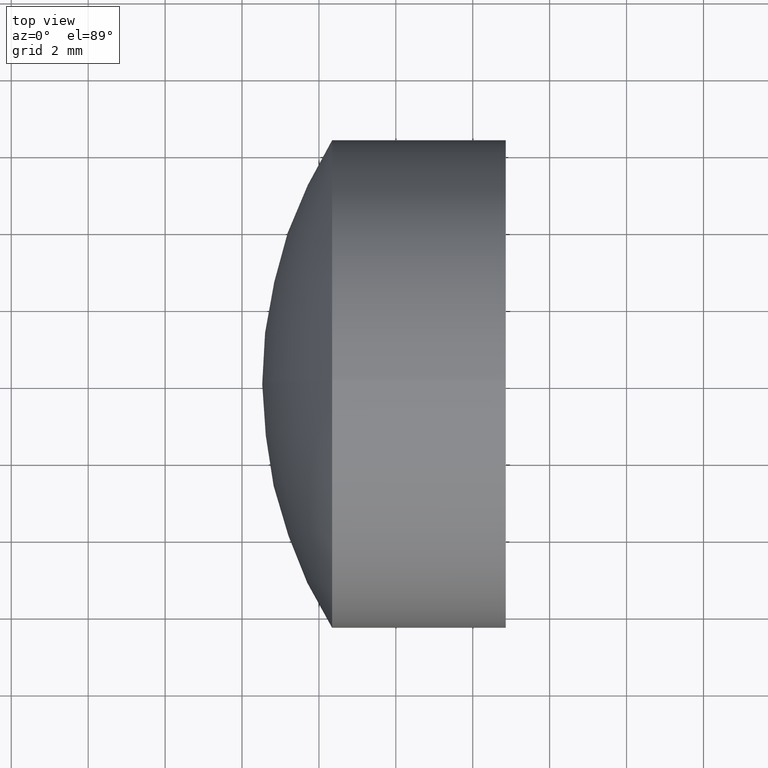
[diagram: clean part render]
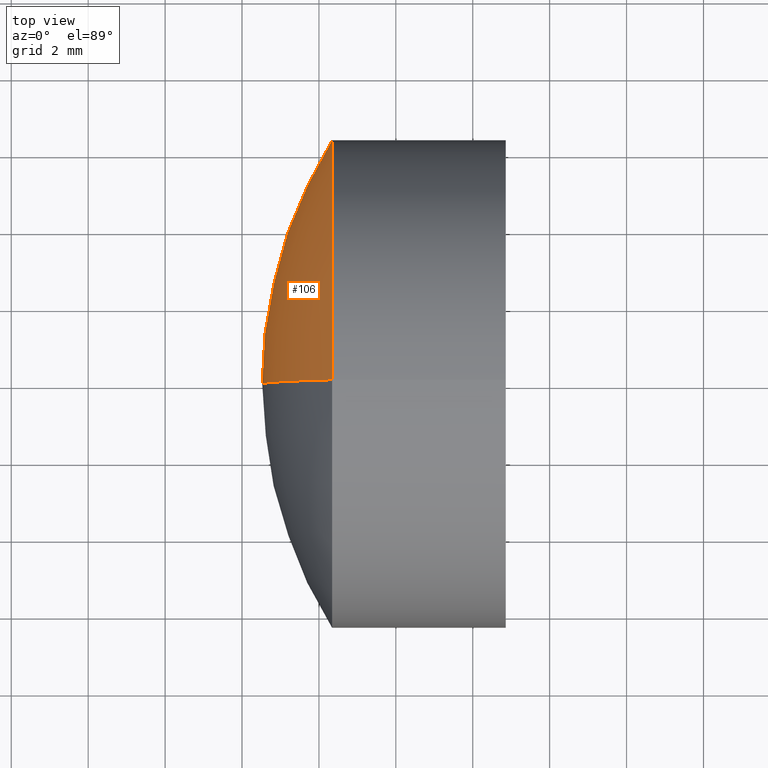
[diagram: same view with one face highlighted and labeled with its STEP entity id]
A machine part, top view. The second image highlights one B-rep face of the part: STEP entity #106.
In plain terms, the highlighted spherical surface has radius 12 mm.
Its self-contained STEP definition (entity closure, byte-faithful):
#6 = EDGE_CURVE ( 'NONE', #137, #88, #71, .T. ) ;
#9 = DIRECTION ( 'NONE',  ( 0.0000000000000000000, 1.224646799147353200E-016, -1.000000000000000000 ) ) ;
#33 = ORIENTED_EDGE ( 'NONE', *, *, #246, .T. ) ;
#61 = EDGE_LOOP ( 'NONE', ( #250, #33, #121 ) ) ;
#65 = AXIS2_PLACEMENT_3D ( 'NONE', #91, #94, #338 ) ;
#71 = CIRCLE ( 'NONE', #65, 12.00000000000000200 ) ;
#80 = DIRECTION ( 'NONE',  ( 0.0000000000000000000, 0.0000000000000000000, 1.000000000000000000 ) ) ;
#84 = VERTEX_POINT ( 'NONE', #153 ) ;
#88 = VERTEX_POINT ( 'NONE', #234 ) ;
#91 = CARTESIAN_POINT ( 'NONE',  ( 32.52592517938953200, 0.0000000000000000000, 6.568687247857372100E-015 ) ) ;
#94 = DIRECTION ( 'NONE',  ( 0.0000000000000000000, 1.000000000000000000, -0.0000000000000000000 ) ) ;
#106 = ADVANCED_FACE ( 'NONE', ( #296 ), #154, .T. ) ;
#121 = ORIENTED_EDGE ( 'NONE', *, *, #6, .T. ) ;
#132 = DIRECTION ( 'NONE',  ( -0.0000000000000000000, -1.000000000000000000, -0.0000000000000000000 ) ) ;
#137 = VERTEX_POINT ( 'NONE', #292 ) ;
#138 = CIRCLE ( 'NONE', #309, 12.00000000000000200 ) ;
#153 = CARTESIAN_POINT ( 'NONE',  ( 22.34371029263723700, -7.776507174585690200E-016, 6.350000000000005000 ) ) ;
#154 = SPHERICAL_SURFACE ( 'NONE', #320, 12.00000000000000200 ) ;
#189 = CARTESIAN_POINT ( 'NONE',  ( 32.52592517938953200, 0.0000000000000000000, 6.568687247857372100E-015 ) ) ;
#194 = CIRCLE ( 'NONE', #200, 6.350000000000004100 ) ;
#200 = AXIS2_PLACEMENT_3D ( 'NONE', #315, #238, #80 ) ;
#234 = CARTESIAN_POINT ( 'NONE',  ( 20.52592517938952500, 0.0000000000000000000, 5.833899168368960400E-015 ) ) ;
#238 = DIRECTION ( 'NONE',  ( -1.000000000000000000, -0.0000000000000000000, -0.0000000000000000000 ) ) ;
#246 = EDGE_CURVE ( 'NONE', #84, #137, #194, .T. ) ;
#250 = ORIENTED_EDGE ( 'NONE', *, *, #319, .F. ) ;
#287 = DIRECTION ( 'NONE',  ( 0.0000000000000000000, 0.0000000000000000000, -1.000000000000000000 ) ) ;
#292 = CARTESIAN_POINT ( 'NONE',  ( 22.34371029263723700, 0.0000000000000000000, -6.349999999999997900 ) ) ;
#295 = DIRECTION ( 'NONE',  ( 0.0000000000000000000, -1.000000000000000000, -1.224646799147353200E-016 ) ) ;
#296 = FACE_OUTER_BOUND ( 'NONE', #61, .T. ) ;
#309 = AXIS2_PLACEMENT_3D ( 'NONE', #189, #295, #9 ) ;
#315 = CARTESIAN_POINT ( 'NONE',  ( 22.34371029263723300, 0.0000000000000000000, 0.0000000000000000000 ) ) ;
#319 = EDGE_CURVE ( 'NONE', #84, #88, #138, .T. ) ;
#320 = AXIS2_PLACEMENT_3D ( 'NONE', #321, #132, #287 ) ;
#321 = CARTESIAN_POINT ( 'NONE',  ( 32.52592517938953200, 0.0000000000000000000, 6.568687247857372100E-015 ) ) ;
#338 = DIRECTION ( 'NONE',  ( 0.0000000000000000000, 0.0000000000000000000, 1.000000000000000000 ) ) ;